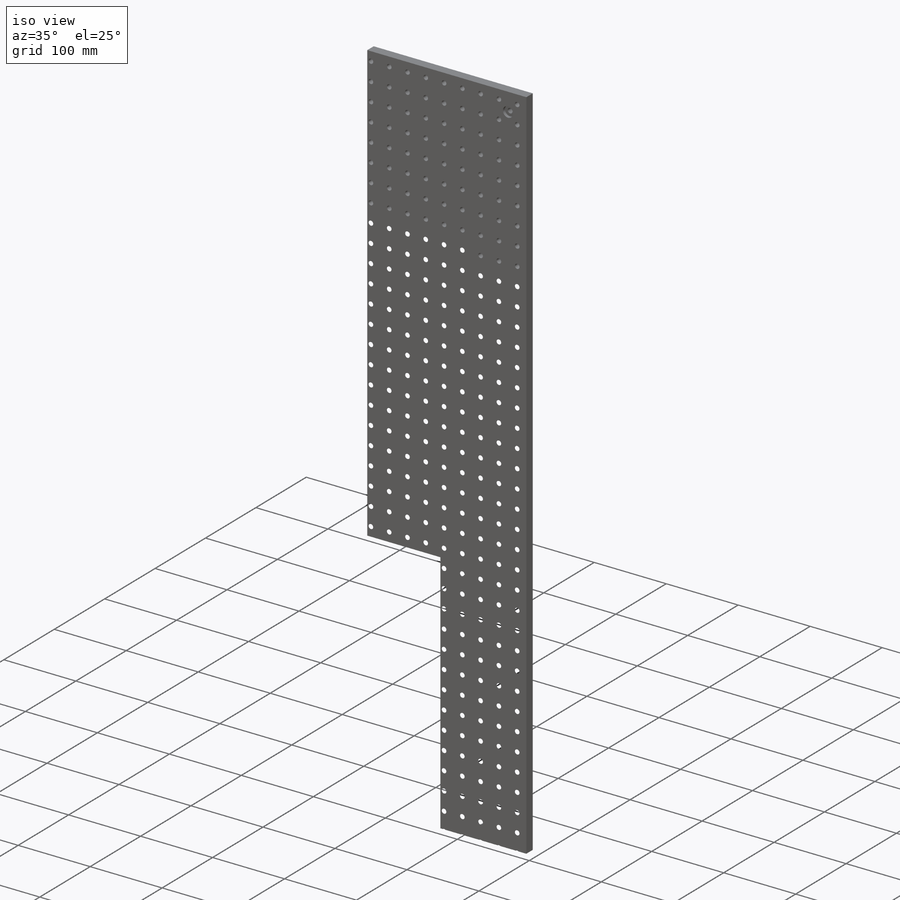
[diagram: iso view]
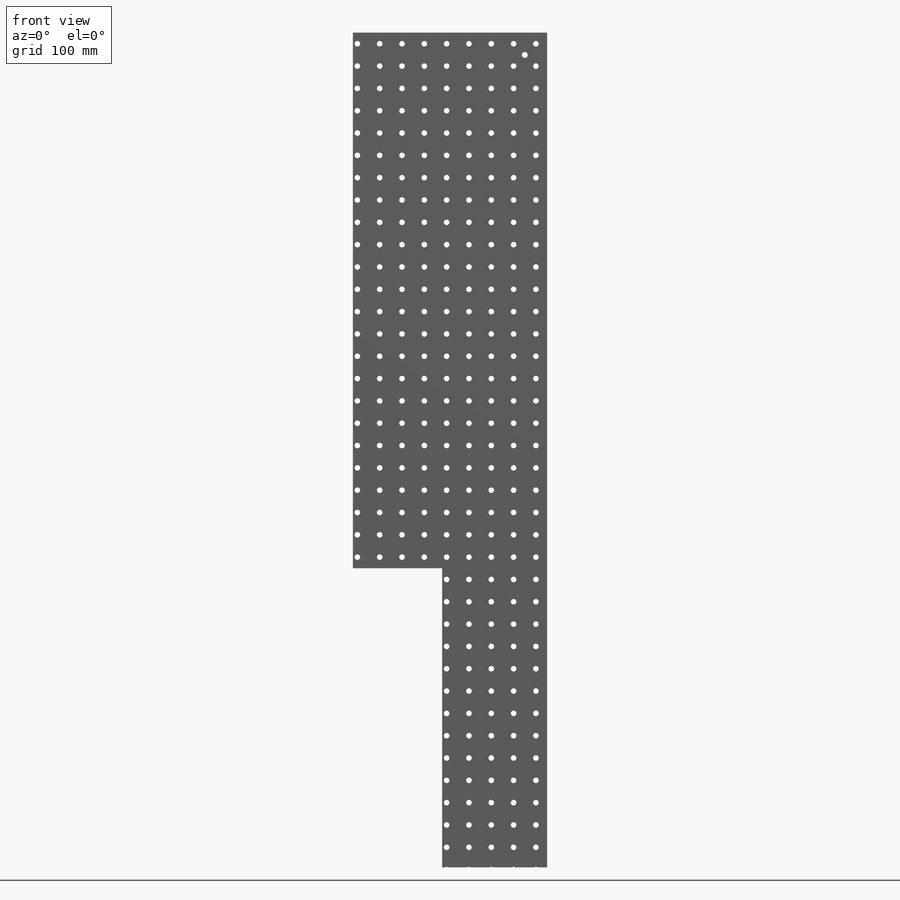
[diagram: front view]
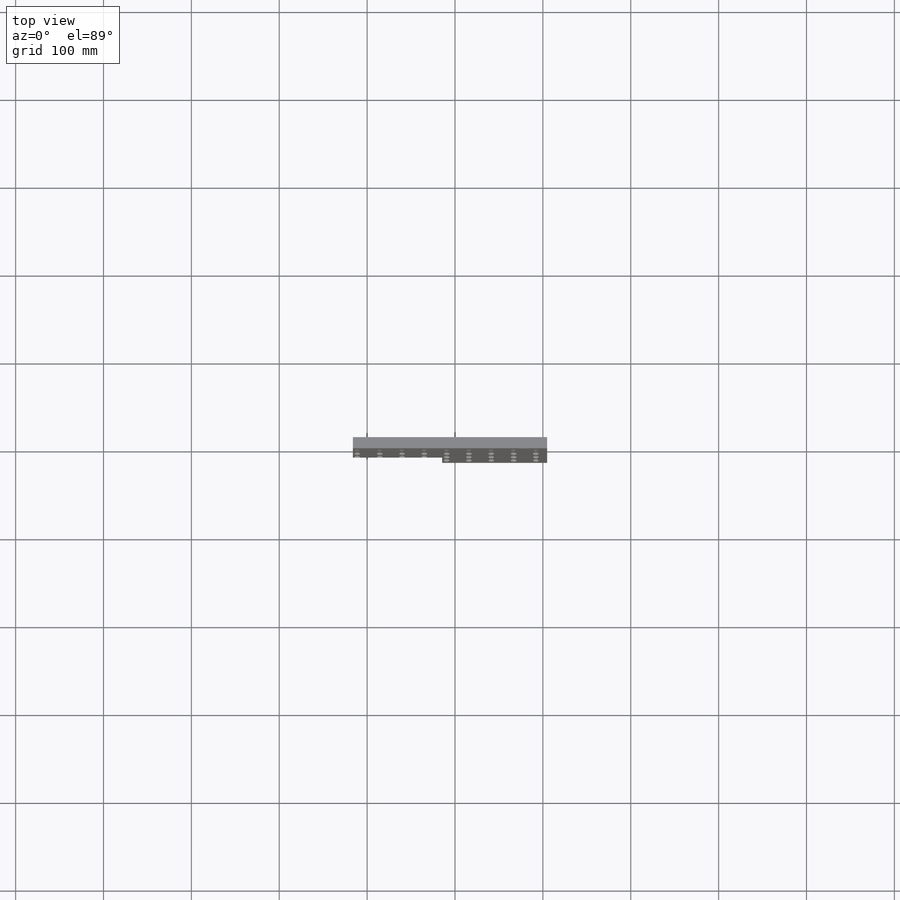
[diagram: top view]
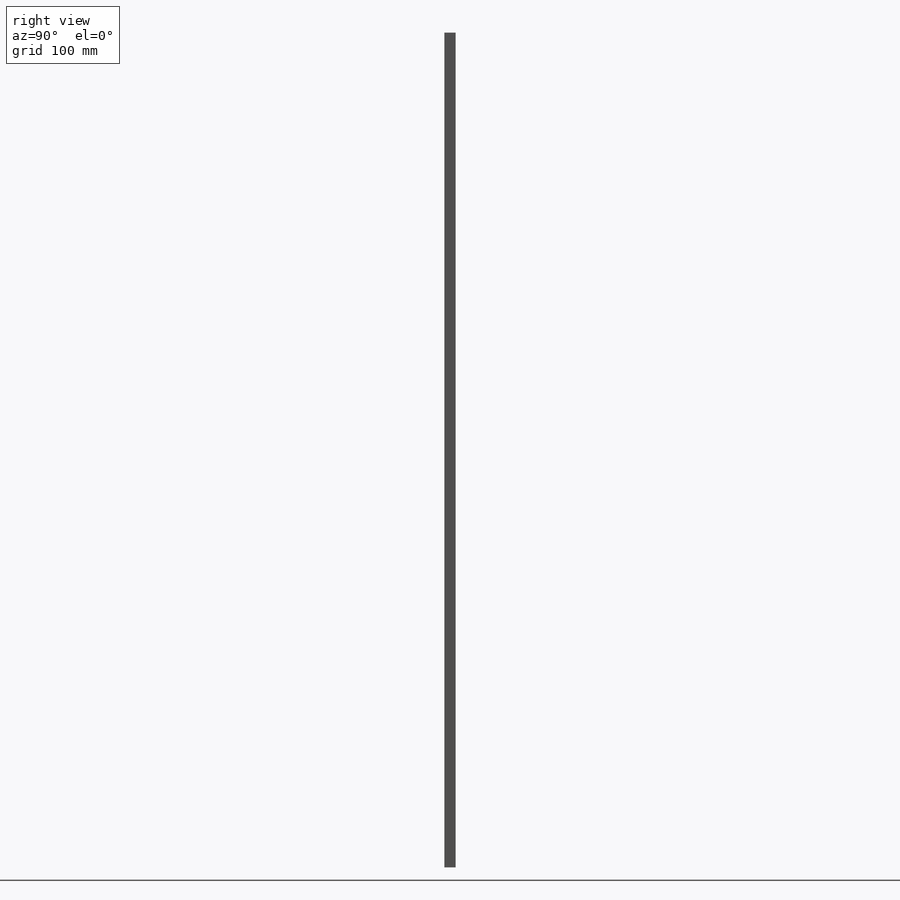
[diagram: right view]
SOLIDWORKS PART (.sldprt)
format: sldprt  version: not decoded by parser v0  size: 628,736 bytes
history: native  units: mm
features: sketch x13, hole x5, cut_extrude x2, material x1, extrude x1, pattern_linear x1 (+13 scaffold rows collapsed)
feature tree (36):
  scaffold x13  (default folders/planes/origin — collapsed)
  material  "Material <not specified>"
  sketch  "Sketch1"  dims[D1=304.8mm D2=1168.4mm]
  extrude  "Extrude1"  Depth=12.7mm
  hole  "CBORE for 1/4 Binding Head Machine Screw1"  Diameter=6.7564mm Depth=12.7mm
  sketch  "3DSketch1"  dims[D1=25.4mm D2=25.4mm]
  sketch  "Sketch2"  dims[hole-wizard template sketch: 43 standard entries collapsed; hole parameters kept: c12.C'Bore Dia.=14.2875mm c12.C'Bore Depth=4.191mm]
  hole  "CBORE for 1/4 Binding Head Machine Screw2"  Diameter=6.7564mm Depth=12.7mm
  sketch  "3DSketch2"  dims[D1=25.4mm D2=25.4mm]
  sketch  "Sketch3"  dims[hole-wizard template sketch: 43 standard entries collapsed; hole parameters kept: c12.C'Bore Dia.=14.2875mm c12.C'Bore Depth=4.191mm]
  hole  "CBORE for 1/4 Binding Head Machine Screw3"  Diameter=6.7564mm Depth=12.7mm
  sketch  "3DSketch3"  dims[D1=25.4mm D2=25.4mm]
  sketch  "Sketch4"  dims[hole-wizard template sketch: 43 standard entries collapsed; hole parameters kept: c12.C'Bore Dia.=14.2875mm c12.C'Bore Depth=4.191mm]
  hole  "CBORE for 1/4 Binding Head Machine Screw4"  Diameter=6.7564mm Depth=12.7mm
  sketch  "3DSketch4"  dims[D1=25.4mm D2=25.4mm]
  sketch  "Sketch5"  dims[hole-wizard template sketch: 43 standard entries collapsed; hole parameters kept: c12.C'Bore Dia.=14.2875mm c12.C'Bore Depth=4.191mm]
  hole  "1/4-20 Tapped Hole1"  Diameter=6.35mm Depth=12.7mm
  sketch  "3DSketch5"  dims[D1=12.7mm D2=12.7mm]
  sketch  "Sketch6"  dims[hole-wizard template sketch: 60 standard entries collapsed; hole parameters kept: c18.Thru Tap Drill Depth=12.7mm]
  pattern_linear  "LPattern1"  Count1=46 Count2=12 Spacing1=25.4mm Spacing2=25.4mm
  sketch  "3DSketch6"  dims[c1.D1=~709.487687mm c2.D1=~10.096723deg c3.D1=~213.28058mm c3.D2=83.82mm c4.D1=220.98mm c4.D2=609.6mm c4.D3=119.38mm]
  cut_extrude  "Cut-Extrude4"  [1 undecoded]
  sketch  "Sketch10"  dims[D1=218.44mm]
  cut_extrude  "Cut-Extrude5"  [1 undecoded]
decode coverage: 20 of 22 modeling features carry decoded parameters
note: ~ marks probable driven/reference dimensions
note: 2 parameter values undecoded
summary: Diameter pulled from absorbed wizard sketch
note: suppression state not decoded; provenance and decode notes live in map.json
